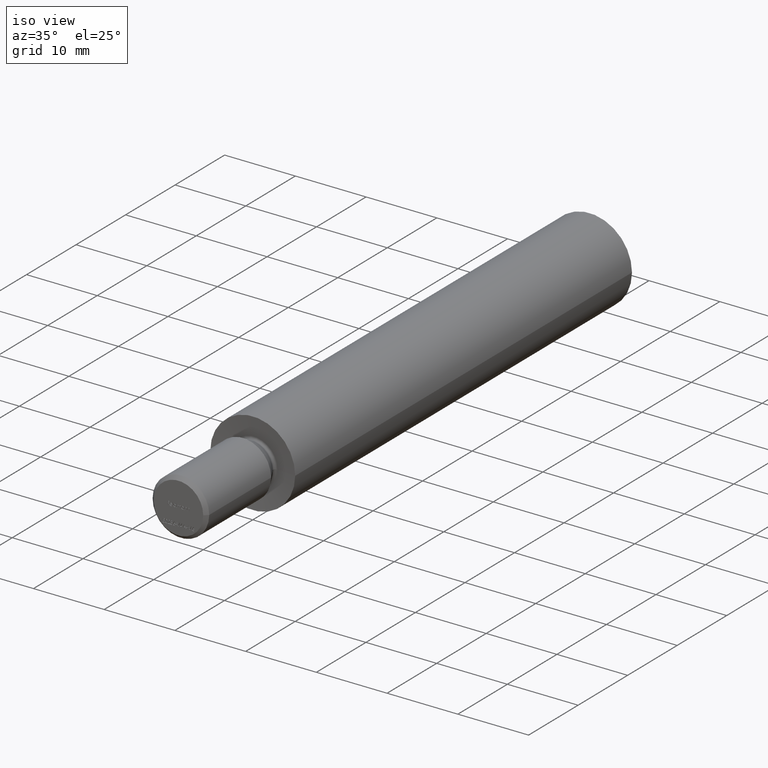
[diagram: clean part render]
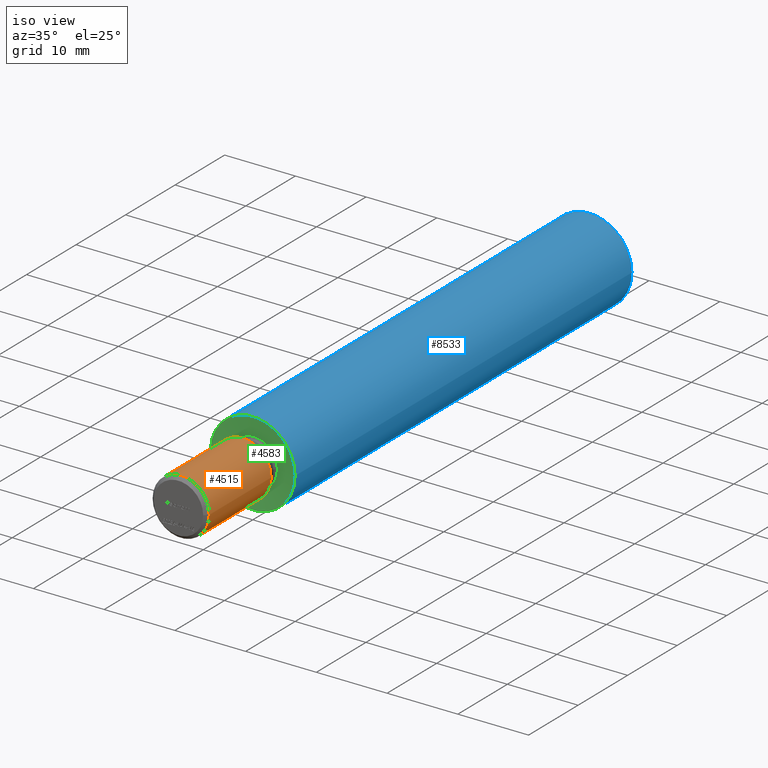
[diagram: same view with three faces highlighted in distinct colors, each labeled with its STEP entity id]
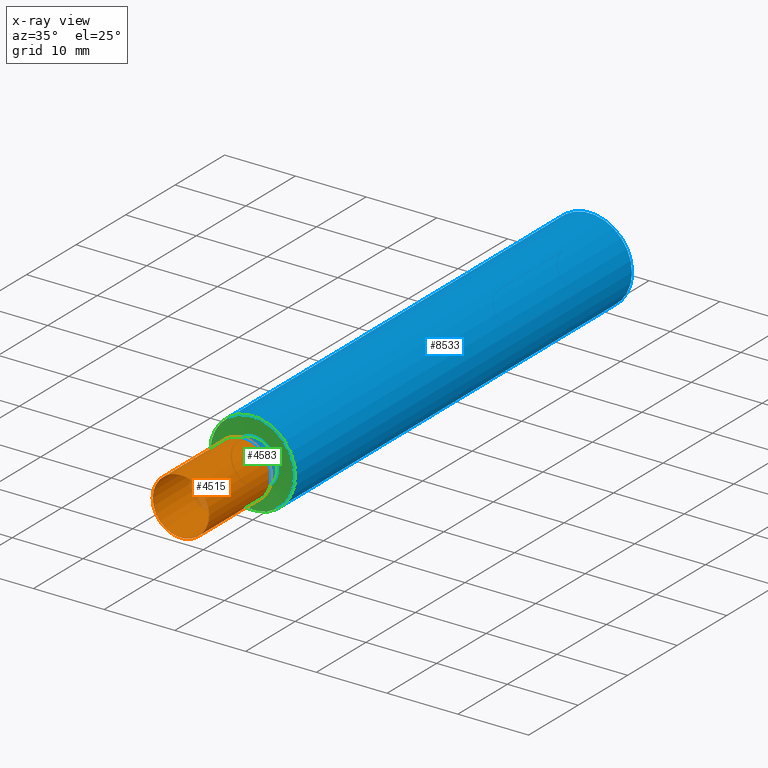
[diagram: x-ray of the same camera — body ghosted, the three highlighted faces saturated]
A machine part, iso view with three faces highlighted in distinct colors.
The next image is the same camera in x-ray (body ghosted, the three faces saturated) — at least one of them is partly hidden behind the body in this view.
Their STEP definitions:

[orange] entity #4515 — the highlighted cylindrical surface (bore or boss wall) has radius 4 mm, axis along (0, -1, -0).
#271 = CARTESIAN_POINT ( 'NONE',  ( 4.000000000000000888, -14.50000000000001599, 0.000000000000000000 ) ) ;
#546 = DIRECTION ( 'NONE',  ( 2.320397523358115259E-33, -1.000000000000000000, -0.000000000000000000 ) ) ;
#786 = ORIENTED_EDGE ( 'NONE', *, *, #5838, .T. ) ;
#973 = VERTEX_POINT ( 'NONE', #3444 ) ;
#1727 = CIRCLE ( 'NONE', #2930, 4.000000000000000000 ) ;
#2250 = DIRECTION ( 'NONE',  ( 2.320397523358115259E-33, -1.000000000000000000, -0.000000000000000000 ) ) ;
#2930 = AXIS2_PLACEMENT_3D ( 'NONE', #12961, #2250, #9628 ) ;
#3342 = DIRECTION ( 'NONE',  ( 1.000000000000000000, 0.000000000000000000, 0.000000000000000000 ) ) ;
#3444 = CARTESIAN_POINT ( 'NONE',  ( 4.000000000000000000, -2.000000000000000000, 0.000000000000000000 ) ) ;
#3670 = AXIS2_PLACEMENT_3D ( 'NONE', #9514, #11738, #3342 ) ;
#3741 = ORIENTED_EDGE ( 'NONE', *, *, #4504, .T. ) ;
#4055 = FACE_OUTER_BOUND ( 'NONE', #10359, .T. ) ;
#4504 = EDGE_CURVE ( 'NONE', #973, #973, #1727, .T. ) ;
#4515 = ADVANCED_FACE ( 'NONE', ( #4055, #5861 ), #10624, .T. ) ;
#5838 = EDGE_CURVE ( 'NONE', #12057, #12057, #6215, .T. ) ;
#5861 = FACE_OUTER_BOUND ( 'NONE', #12526, .T. ) ;
#6215 = CIRCLE ( 'NONE', #3670, 4.000000000000000888 ) ;
#8904 = CARTESIAN_POINT ( 'NONE',  ( 1.925929944387235853E-31, -15.00000000000000000, 0.000000000000000000 ) ) ;
#9514 = CARTESIAN_POINT ( 'NONE',  ( 1.914327956770445692E-31, -14.50000000000001599, 0.000000000000000000 ) ) ;
#9628 = DIRECTION ( 'NONE',  ( 1.000000000000000000, 0.000000000000000000, 0.000000000000000000 ) ) ;
#10359 = EDGE_LOOP ( 'NONE', ( #786 ) ) ;
#10624 = CYLINDRICAL_SURFACE ( 'NONE', #12413, 4.000000000000000888 ) ;
#11738 = DIRECTION ( 'NONE',  ( -2.320397523358094390E-33, 1.000000000000000000, 0.000000000000000000 ) ) ;
#11939 = DIRECTION ( 'NONE',  ( 1.000000000000000000, 0.000000000000000000, 0.000000000000000000 ) ) ;
#12057 = VERTEX_POINT ( 'NONE', #271 ) ;
#12413 = AXIS2_PLACEMENT_3D ( 'NONE', #8904, #546, #11939 ) ;
#12526 = EDGE_LOOP ( 'NONE', ( #3741 ) ) ;
#12961 = CARTESIAN_POINT ( 'NONE',  ( 1.624278266350680948E-31, -2.000000000000000000, 0.000000000000000000 ) ) ;

[blue] entity #8533 — the highlighted cylindrical surface (bore or boss wall) has radius 6 mm, axis along (0, -1, -0).
#174 = FACE_OUTER_BOUND ( 'NONE', #11484, .T. ) ;
#223 = CARTESIAN_POINT ( 'NONE',  ( 6.000000000000009770, 1.392238514014871276E-32, 0.000000000000000000 ) ) ;
#1163 = VERTEX_POINT ( 'NONE', #223 ) ;
#1627 = DIRECTION ( 'NONE',  ( 2.320397523358115259E-33, -1.000000000000000000, -0.000000000000000000 ) ) ;
#2419 = AXIS2_PLACEMENT_3D ( 'NONE', #9734, #9873, #3513 ) ;
#3513 = DIRECTION ( 'NONE',  ( 1.000000000000000000, 0.000000000000000000, 0.000000000000000000 ) ) ;
#3733 = CIRCLE ( 'NONE', #11694, 6.000000000000009770 ) ;
#4139 = EDGE_CURVE ( 'NONE', #1163, #1163, #3733, .T. ) ;
#4425 = ORIENTED_EDGE ( 'NONE', *, *, #5676, .T. ) ;
#4859 = CARTESIAN_POINT ( 'NONE',  ( 1.925929944387235853E-31, -15.00000000000000000, 0.000000000000000000 ) ) ;
#5676 = EDGE_CURVE ( 'NONE', #9073, #9073, #7490, .T. ) ;
#5821 = CARTESIAN_POINT ( 'NONE',  ( 1.577870315883518554E-31, 0.000000000000000000, 0.000000000000000000 ) ) ;
#6908 = DIRECTION ( 'NONE',  ( 1.000000000000000000, 0.000000000000000000, 0.000000000000000000 ) ) ;
#7490 = CIRCLE ( 'NONE', #2419, 5.999999999999997335 ) ;
#8280 = EDGE_LOOP ( 'NONE', ( #4425 ) ) ;
#8409 = FACE_OUTER_BOUND ( 'NONE', #8280, .T. ) ;
#8533 = ADVANCED_FACE ( 'NONE', ( #8409, #174 ), #12066, .T. ) ;
#9073 = VERTEX_POINT ( 'NONE', #9751 ) ;
#9115 = DIRECTION ( 'NONE',  ( 2.320397523358115259E-33, -1.000000000000000000, -0.000000000000000000 ) ) ;
#9734 = CARTESIAN_POINT ( 'NONE',  ( 0.000000000000000000, 68.00000000000000000, 0.000000000000000000 ) ) ;
#9751 = CARTESIAN_POINT ( 'NONE',  ( 5.999999999999997335, 68.00000000000000000, 0.000000000000000000 ) ) ;
#9873 = DIRECTION ( 'NONE',  ( 2.320397523358115259E-33, -1.000000000000000000, -0.000000000000000000 ) ) ;
#11484 = EDGE_LOOP ( 'NONE', ( #12979 ) ) ;
#11694 = AXIS2_PLACEMENT_3D ( 'NONE', #5821, #1627, #13208 ) ;
#12066 = CYLINDRICAL_SURFACE ( 'NONE', #13624, 6.000000000000003553 ) ;
#12979 = ORIENTED_EDGE ( 'NONE', *, *, #4139, .F. ) ;
#13208 = DIRECTION ( 'NONE',  ( 1.000000000000000000, 2.320397523358114917E-33, 0.000000000000000000 ) ) ;
#13624 = AXIS2_PLACEMENT_3D ( 'NONE', #4859, #9115, #6908 ) ;

[green] entity #4583 — the highlighted conical surface has half-angle 85 deg.
#75 = FACE_BOUND ( 'NONE', #5136, .T. ) ;
#223 = CARTESIAN_POINT ( 'NONE',  ( 6.000000000000009770, 1.392238514014871276E-32, 0.000000000000000000 ) ) ;
#1163 = VERTEX_POINT ( 'NONE', #223 ) ;
#1429 = DIRECTION ( 'NONE',  ( 1.000000000000000000, 0.000000000000000000, 0.000000000000000000 ) ) ;
#1627 = DIRECTION ( 'NONE',  ( 2.320397523358115259E-33, -1.000000000000000000, -0.000000000000000000 ) ) ;
#3237 = CARTESIAN_POINT ( 'NONE',  ( 1.572429834968823466E-31, 0.2344633132870081738, 0.000000000000000000 ) ) ;
#3733 = CIRCLE ( 'NONE', #11694, 6.000000000000009770 ) ;
#3779 = EDGE_CURVE ( 'NONE', #3967, #3967, #3905, .T. ) ;
#3876 = FACE_OUTER_BOUND ( 'NONE', #6338, .T. ) ;
#3905 = CIRCLE ( 'NONE', #11589, 3.320072066050799187 ) ;
#3967 = VERTEX_POINT ( 'NONE', #8524 ) ;
#4139 = EDGE_CURVE ( 'NONE', #1163, #1163, #3733, .T. ) ;
#4583 = ADVANCED_FACE ( 'NONE', ( #3876, #75 ), #11623, .F. ) ;
#5136 = EDGE_LOOP ( 'NONE', ( #9390 ) ) ;
#5821 = CARTESIAN_POINT ( 'NONE',  ( 1.577870315883518554E-31, 0.000000000000000000, 0.000000000000000000 ) ) ;
#6338 = EDGE_LOOP ( 'NONE', ( #11103 ) ) ;
#7596 = DIRECTION ( 'NONE',  ( 1.000000000000000000, 0.000000000000000000, 0.000000000000000000 ) ) ;
#7848 = CARTESIAN_POINT ( 'NONE',  ( 1.572429834968823466E-31, 0.2344633132870081738, 0.000000000000000000 ) ) ;
#8524 = CARTESIAN_POINT ( 'NONE',  ( 3.320072066050799187, 0.2344633132870081738, 0.000000000000000000 ) ) ;
#9390 = ORIENTED_EDGE ( 'NONE', *, *, #3779, .F. ) ;
#10272 = AXIS2_PLACEMENT_3D ( 'NONE', #7848, #12040, #1429 ) ;
#11103 = ORIENTED_EDGE ( 'NONE', *, *, #4139, .T. ) ;
#11589 = AXIS2_PLACEMENT_3D ( 'NONE', #3237, #12892, #7596 ) ;
#11623 = CONICAL_SURFACE ( 'NONE', #10272, 3.320072066050799187, 1.483529864195179737 ) ;
#11694 = AXIS2_PLACEMENT_3D ( 'NONE', #5821, #1627, #13208 ) ;
#12040 = DIRECTION ( 'NONE',  ( 2.320397523358115259E-33, -1.000000000000000000, -0.000000000000000000 ) ) ;
#12892 = DIRECTION ( 'NONE',  ( 2.320397523358115259E-33, -1.000000000000000000, -0.000000000000000000 ) ) ;
#13208 = DIRECTION ( 'NONE',  ( 1.000000000000000000, 2.320397523358114917E-33, 0.000000000000000000 ) ) ;